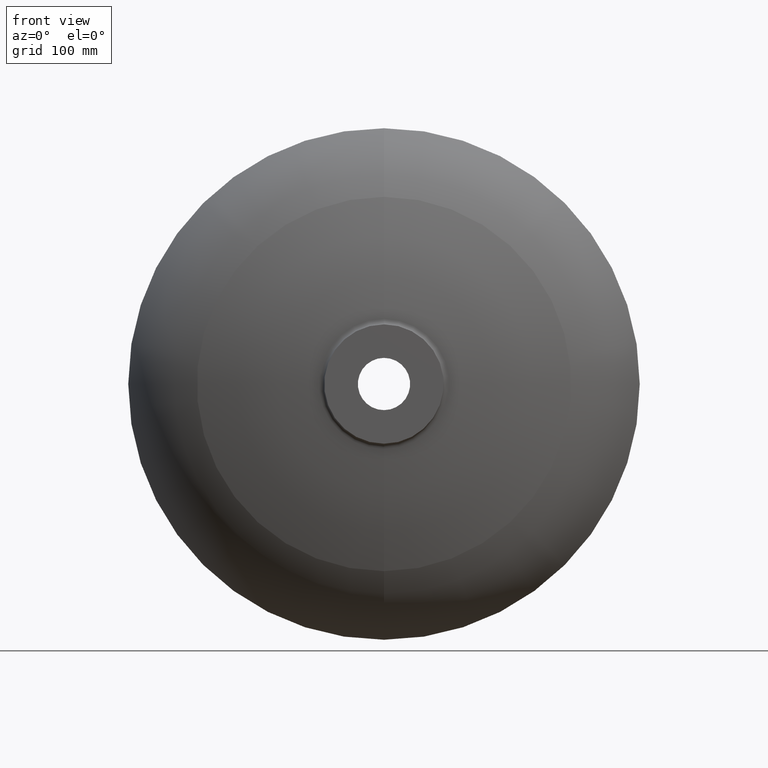
[diagram: clean part render]
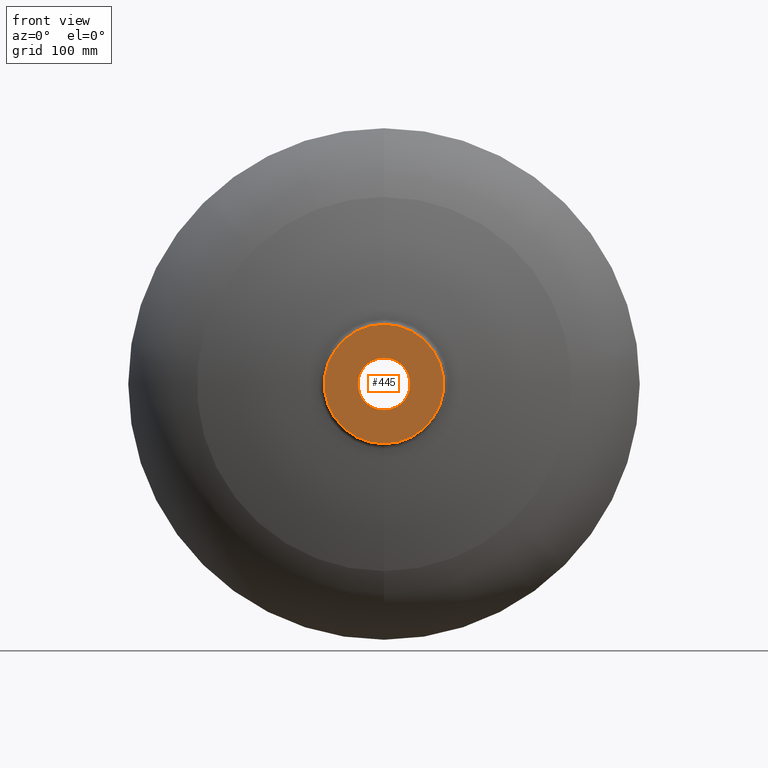
[diagram: same view with one face highlighted and labeled with its STEP entity id]
A machine part, front view. The second image highlights one B-rep face of the part: STEP entity #445.
In plain terms, the highlighted planar face has unit normal (0, -1, 0).
Its self-contained STEP definition (entity closure, byte-faithful):
#3 = FACE_BOUND ( 'NONE', #118, .T. ) ;
#51 = AXIS2_PLACEMENT_3D ( 'NONE', #442, #216, #217 ) ;
#78 = CARTESIAN_POINT ( 'NONE',  ( 2.135878279796443735E-14, -94.99999999999997158, 0.0000000000000000000 ) ) ;
#98 = DIRECTION ( 'NONE',  ( -0.0000000000000000000, 1.000000000000000000, -0.0000000000000000000 ) ) ;
#106 = CARTESIAN_POINT ( 'NONE',  ( 2.778817849348804525E-14, -94.99999999999997158, -52.50000000000002132 ) ) ;
#107 = AXIS2_PLACEMENT_3D ( 'NONE', #205, #192, #143 ) ;
#118 = EDGE_LOOP ( 'NONE', ( #468, #535 ) ) ;
#133 = CARTESIAN_POINT ( 'NONE',  ( 2.135878279796443735E-14, -94.99999999999997158, 23.00000000000002132 ) ) ;
#137 = CARTESIAN_POINT ( 'NONE',  ( 2.135878279796443735E-14, -94.99999999999997158, 52.50000000000002132 ) ) ;
#143 = DIRECTION ( 'NONE',  ( 0.0000000000000000000, 0.0000000000000000000, 1.000000000000000000 ) ) ;
#149 = DIRECTION ( 'NONE',  ( 0.0000000000000000000, -0.0000000000000000000, -1.000000000000000000 ) ) ;
#170 = CIRCLE ( 'NONE', #107, 23.00000000000002132 ) ;
#192 = DIRECTION ( 'NONE',  ( -0.0000000000000000000, 1.000000000000000000, -0.0000000000000000000 ) ) ;
#193 = VERTEX_POINT ( 'NONE', #106 ) ;
#205 = CARTESIAN_POINT ( 'NONE',  ( 2.135878279796443735E-14, -94.99999999999997158, 0.0000000000000000000 ) ) ;
#216 = DIRECTION ( 'NONE',  ( -0.0000000000000000000, 1.000000000000000000, -0.0000000000000000000 ) ) ;
#217 = DIRECTION ( 'NONE',  ( 0.0000000000000000000, 0.0000000000000000000, 1.000000000000000000 ) ) ;
#222 = AXIS2_PLACEMENT_3D ( 'NONE', #78, #98, #425 ) ;
#223 = CIRCLE ( 'NONE', #51, 23.00000000000002132 ) ;
#231 = EDGE_CURVE ( 'NONE', #321, #275, #170, .T. ) ;
#237 = EDGE_CURVE ( 'NONE', #275, #321, #223, .T. ) ;
#260 = CARTESIAN_POINT ( 'NONE',  ( -52.50000000000000000, -95.00000000000000000, 0.0000000000000000000 ) ) ;
#262 = DIRECTION ( 'NONE',  ( -0.0000000000000000000, 1.000000000000000000, -0.0000000000000000000 ) ) ;
#275 = VERTEX_POINT ( 'NONE', #284 ) ;
#279 = PLANE ( 'NONE',  #351 ) ;
#280 = FACE_OUTER_BOUND ( 'NONE', #546, .T. ) ;
#282 = DIRECTION ( 'NONE',  ( 0.0000000000000000000, -1.000000000000000000, 0.0000000000000000000 ) ) ;
#284 = CARTESIAN_POINT ( 'NONE',  ( 2.417547043600335207E-14, -94.99999999999997158, -23.00000000000002132 ) ) ;
#310 = ORIENTED_EDGE ( 'NONE', *, *, #540, .F. ) ;
#316 = VERTEX_POINT ( 'NONE', #137 ) ;
#321 = VERTEX_POINT ( 'NONE', #133 ) ;
#343 = EDGE_CURVE ( 'NONE', #316, #193, #353, .T. ) ;
#351 = AXIS2_PLACEMENT_3D ( 'NONE', #260, #282, #149 ) ;
#353 = CIRCLE ( 'NONE', #385, 52.50000000000002132 ) ;
#385 = AXIS2_PLACEMENT_3D ( 'NONE', #510, #262, #513 ) ;
#425 = DIRECTION ( 'NONE',  ( 0.0000000000000000000, 0.0000000000000000000, 1.000000000000000000 ) ) ;
#427 = CIRCLE ( 'NONE', #222, 52.50000000000002132 ) ;
#442 = CARTESIAN_POINT ( 'NONE',  ( 2.135878279796443735E-14, -94.99999999999997158, 0.0000000000000000000 ) ) ;
#445 = ADVANCED_FACE ( 'NONE', ( #3, #280 ), #279, .T. ) ;
#468 = ORIENTED_EDGE ( 'NONE', *, *, #231, .T. ) ;
#506 = ORIENTED_EDGE ( 'NONE', *, *, #343, .F. ) ;
#510 = CARTESIAN_POINT ( 'NONE',  ( 2.135878279796443735E-14, -94.99999999999997158, 0.0000000000000000000 ) ) ;
#513 = DIRECTION ( 'NONE',  ( 0.0000000000000000000, 0.0000000000000000000, 1.000000000000000000 ) ) ;
#535 = ORIENTED_EDGE ( 'NONE', *, *, #237, .T. ) ;
#540 = EDGE_CURVE ( 'NONE', #193, #316, #427, .T. ) ;
#546 = EDGE_LOOP ( 'NONE', ( #506, #310 ) ) ;